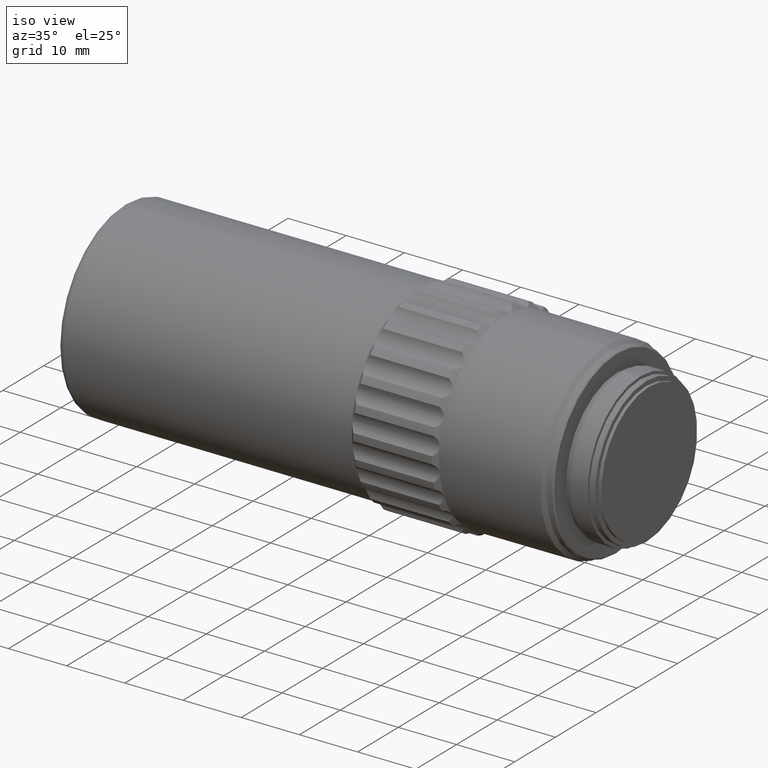
[diagram: clean part render]
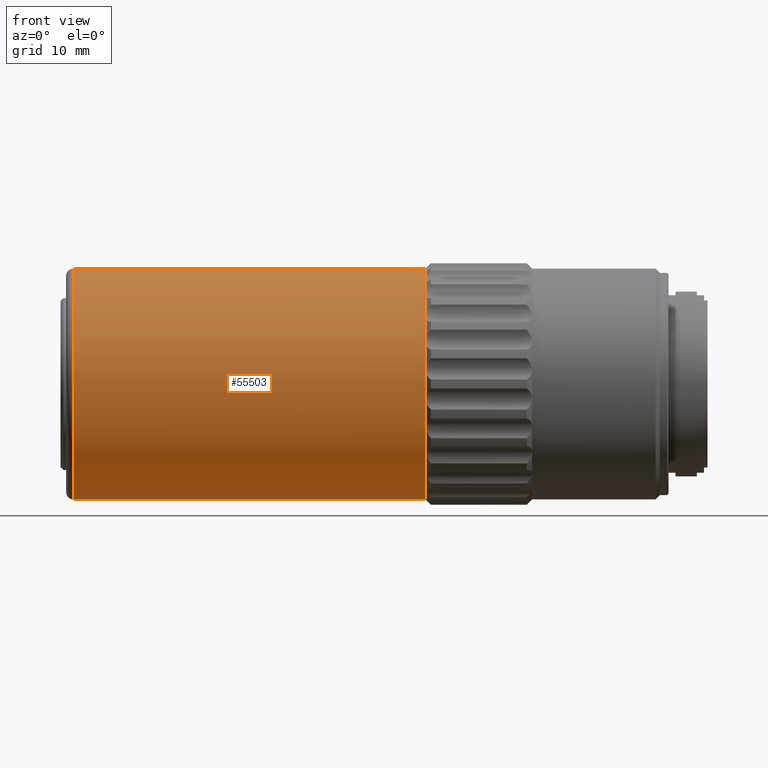
[diagram: tour spotlight — one face highlighted and labeled with its STEP entity id]
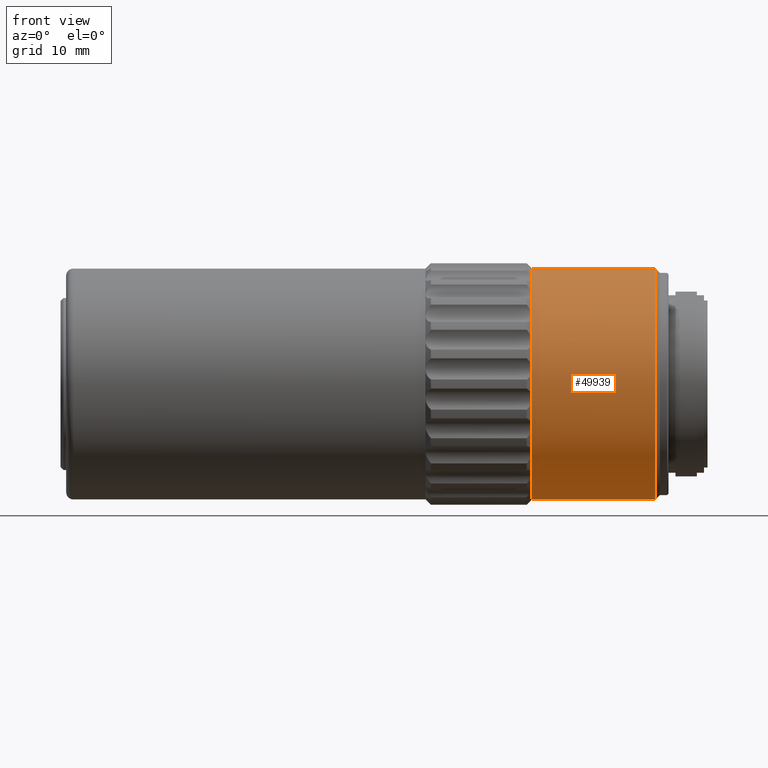
[diagram: tour spotlight — one face highlighted and labeled with its STEP entity id]
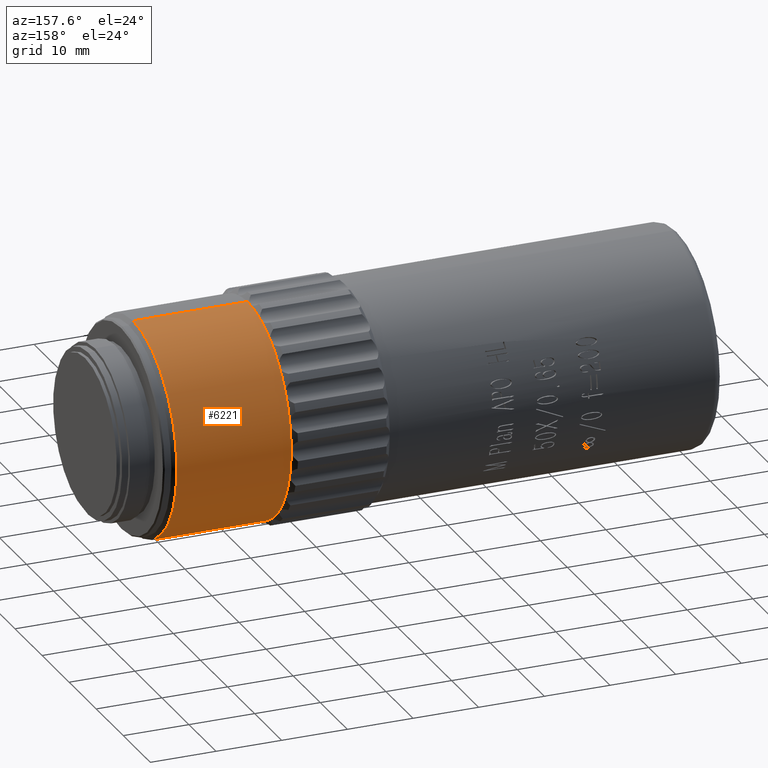
[diagram: tour spotlight — one face highlighted and labeled with its STEP entity id]
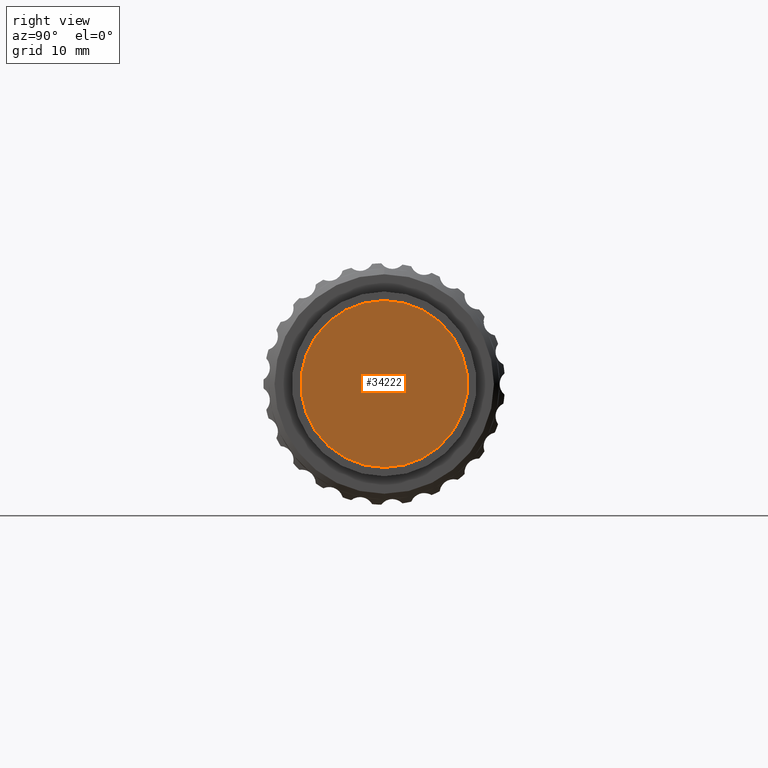
[diagram: tour spotlight — one face highlighted and labeled with its STEP entity id]
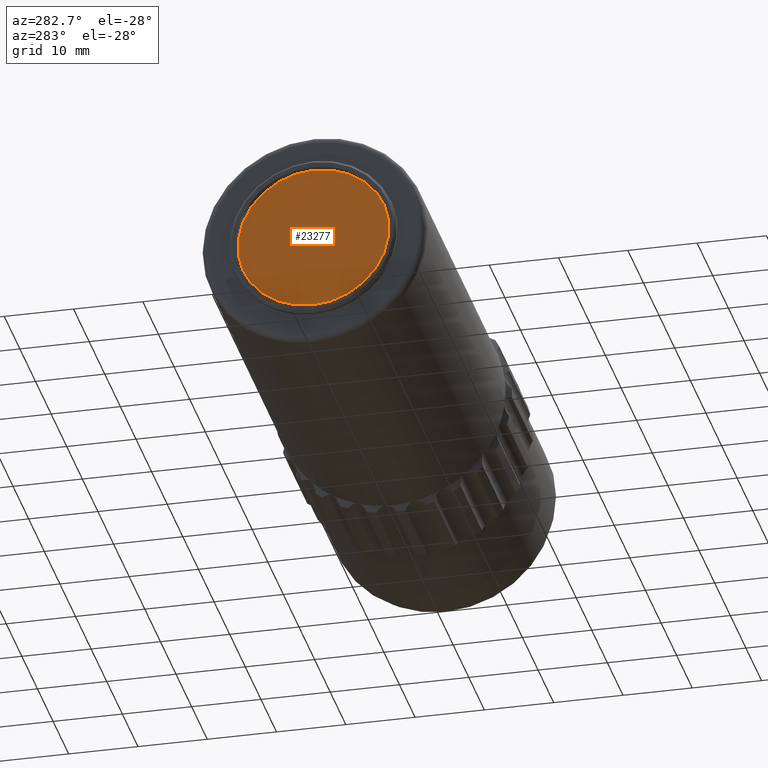
[diagram: tour spotlight — one face highlighted and labeled with its STEP entity id]
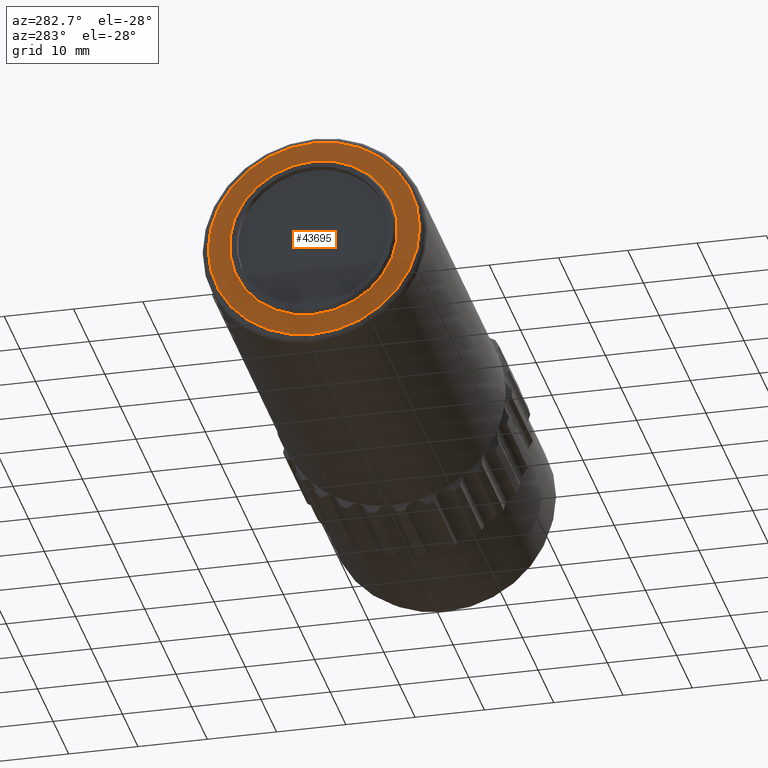
[diagram: tour spotlight — one face highlighted and labeled with its STEP entity id]
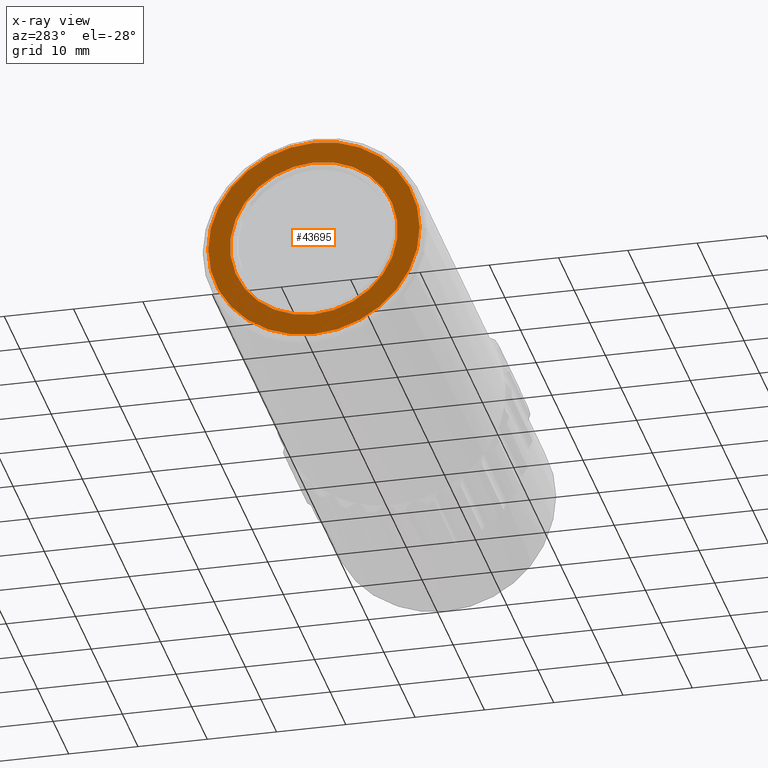
[diagram: x-ray of the same camera — body ghosted, this tour face saturated]
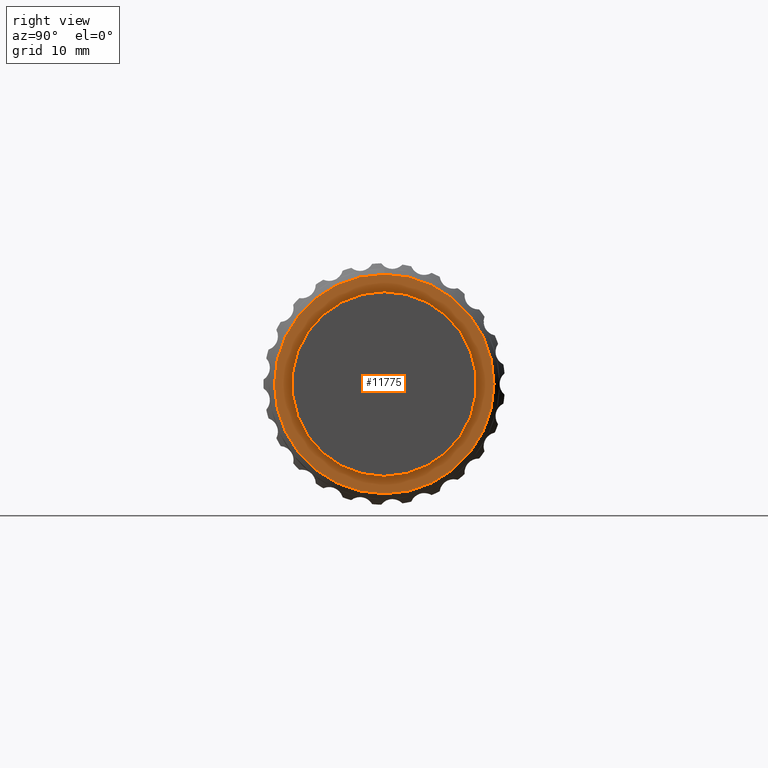
[diagram: tour spotlight — one face highlighted and labeled with its STEP entity id]
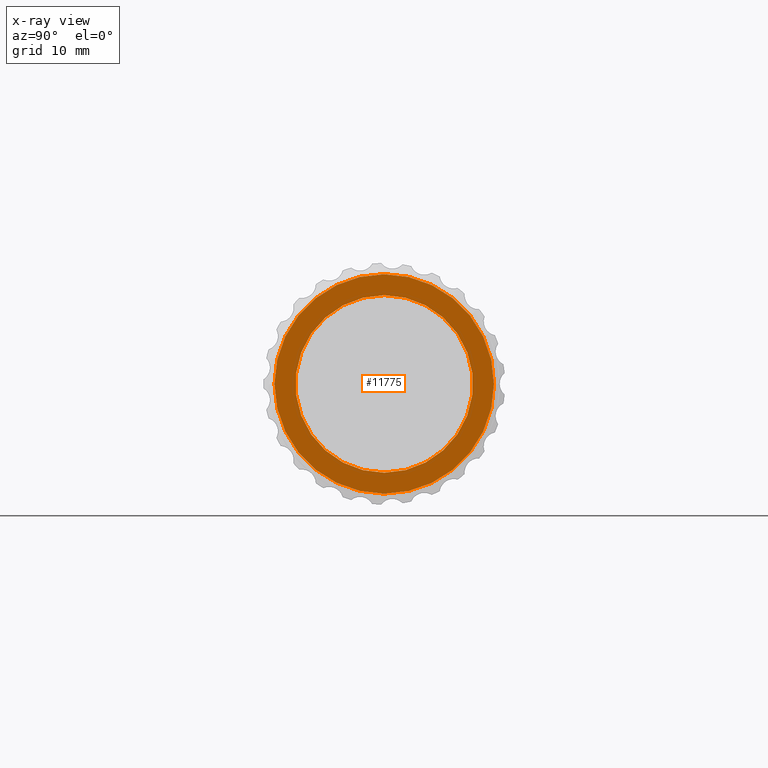
[diagram: x-ray of the same camera — body ghosted, this tour face saturated]
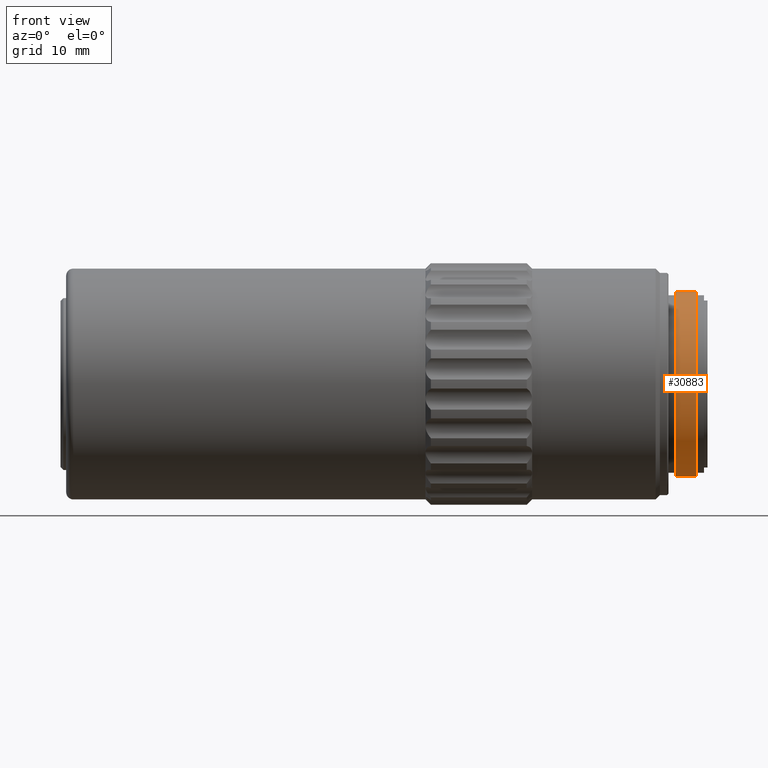
[diagram: tour spotlight — one face highlighted and labeled with its STEP entity id]
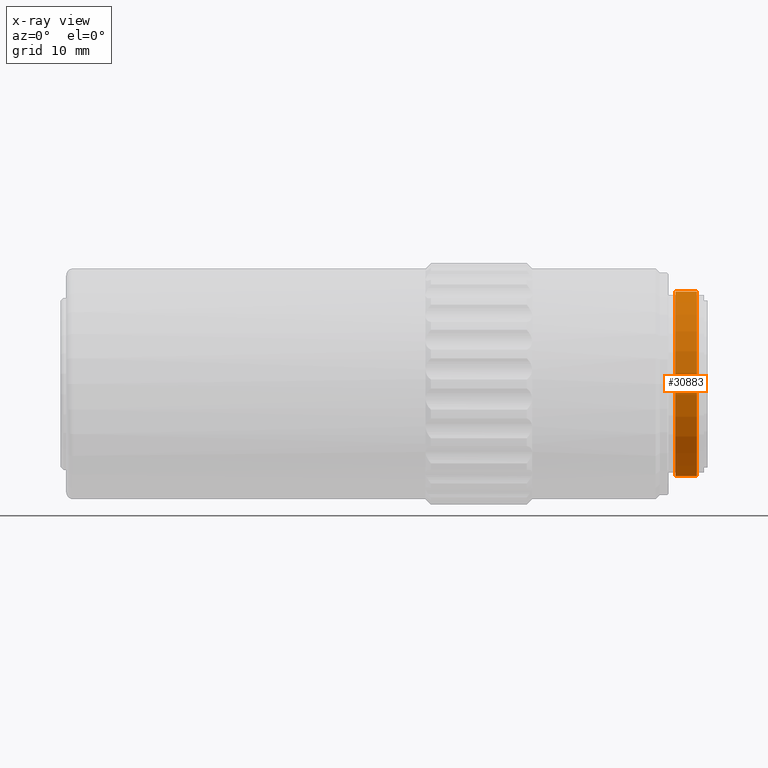
[diagram: x-ray of the same camera — body ghosted, this tour face saturated]
A machine part: a face-by-face anatomy tour. The part has 632 B-rep faces; the first image is the clean iso view, then the 8 largest visible faces are spotlighted one at a time (largest first), each with its STEP entity span.

Face 1 — front view, entity #55503. In plain terms, the highlighted cylindrical surface (partial cylindrical patch) has radius 16.25 mm, axis along (-1, -0, -0).
Definition (entity closure, byte-faithful):
#140 = CARTESIAN_POINT ( 'NONE',  ( 51.39999999999999147, -15.10886789568492361, -5.982023981123901102 ) ) ;
#877 = VERTEX_POINT ( 'NONE', #30316 ) ;
#1683 = CARTESIAN_POINT ( 'NONE',  ( 1.800000000000009148, 1.990051048614449313E-15, -16.25000000000000000 ) ) ;
#1749 = ORIENTED_EDGE ( 'NONE', *, *, #27677, .T. ) ;
#1801 = LINE ( 'NONE', #6336, #41352 ) ;
#2670 = CARTESIAN_POINT ( 'NONE',  ( 51.39999999999999147, 0.000000000000000000, 0.000000000000000000 ) ) ;
#2786 = ORIENTED_EDGE ( 'NONE', *, *, #9480, .F. ) ;
#3459 = CARTESIAN_POINT ( 'NONE',  ( 51.39999999999999147, -16.12186389635996875, 2.036665045422278997 ) ) ;
#3528 = EDGE_CURVE ( 'NONE', #29172, #36774, #26303, .T. ) ;
#3860 = CARTESIAN_POINT ( 'NONE',  ( 51.39999999999999147, -15.10886789568324851, 5.982023981128135937 ) ) ;
#4175 = EDGE_CURVE ( 'NONE', #20195, #34529, #28991, .T. ) ;
#4970 = AXIS2_PLACEMENT_3D ( 'NONE', #40011, #10523, #44812 ) ;
#5169 = VERTEX_POINT ( 'NONE', #42610 ) ;
#5382 = AXIS2_PLACEMENT_3D ( 'NONE', #11362, #53862, #7121 ) ;
#5638 = VERTEX_POINT ( 'NONE', #3459 ) ;
#5742 = AXIS2_PLACEMENT_3D ( 'NONE', #33017, #10933, #50577 ) ;
#5823 = EDGE_CURVE ( 'NONE', #18983, #28611, #52237, .T. ) ;
#6126 = ORIENTED_EDGE ( 'NONE', *, *, #5823, .T. ) ;
#6336 = CARTESIAN_POINT ( 'NONE',  ( 0.000000000000000000, 1.990051048614449313E-15, -16.25000000000000000 ) ) ;
#7027 = AXIS2_PLACEMENT_3D ( 'NONE', #32842, #7640, #37669 ) ;
#7121 = DIRECTION ( 'NONE',  ( 0.000000000000000000, 0.000000000000000000, 1.000000000000000000 ) ) ;
#7494 = VERTEX_POINT ( 'NONE', #140 ) ;
#7640 = DIRECTION ( 'NONE',  ( 1.000000000000000000, 0.000000000000000000, 0.000000000000000000 ) ) ;
#7677 = LINE ( 'NONE', #10805, #34316 ) ;
#9479 = AXIS2_PLACEMENT_3D ( 'NONE', #48858, #40913, #36672 ) ;
#9480 = EDGE_CURVE ( 'NONE', #20108, #28611, #1801, .T. ) ;
#9909 = ORIENTED_EDGE ( 'NONE', *, *, #24869, .T. ) ;
#10002 = AXIS2_PLACEMENT_3D ( 'NONE', #10458, #36527, #23752 ) ;
#10458 = CARTESIAN_POINT ( 'NONE',  ( 51.39999999999999147, 0.000000000000000000, 0.000000000000000000 ) ) ;
#10523 = DIRECTION ( 'NONE',  ( -1.000000000000000000, -0.000000000000000000, -0.000000000000000000 ) ) ;
#10599 = ORIENTED_EDGE ( 'NONE', *, *, #28111, .T. ) ;
#10805 = CARTESIAN_POINT ( 'NONE',  ( 0.000000000000000000, 0.000000000000000000, 16.25000000000000000 ) ) ;
#10933 = DIRECTION ( 'NONE',  ( -1.000000000000000000, -0.000000000000000000, -0.000000000000000000 ) ) ;
#11362 = CARTESIAN_POINT ( 'NONE',  ( 51.39999999999999147, 0.000000000000000000, 0.000000000000000000 ) ) ;
#12039 = AXIS2_PLACEMENT_3D ( 'NONE', #34913, #55870, #26114 ) ;
#12494 = DIRECTION ( 'NONE',  ( 0.000000000000000000, 0.000000000000000000, 1.000000000000000000 ) ) ;
#12775 = CARTESIAN_POINT ( 'NONE',  ( 51.39999999999999147, 0.000000000000000000, 0.000000000000000000 ) ) ;
#14548 = AXIS2_PLACEMENT_3D ( 'NONE', #36124, #44349, #49694 ) ;
#14878 = CARTESIAN_POINT ( 'NONE',  ( 51.39999999999999147, -13.14652615859414730, -9.551510349750961026 ) ) ;
#15170 = EDGE_CURVE ( 'NONE', #7494, #5169, #44379, .T. ) ;
#15762 = CIRCLE ( 'NONE', #37441, 16.25000000000000000 ) ;
#16662 = AXIS2_PLACEMENT_3D ( 'NONE', #12775, #47614, #12494 ) ;
#16671 = DIRECTION ( 'NONE',  ( 0.000000000000000000, 0.000000000000000000, 1.000000000000000000 ) ) ;
#18955 = DIRECTION ( 'NONE',  ( 0.000000000000000000, 0.000000000000000000, 1.000000000000000000 ) ) ;
#18983 = VERTEX_POINT ( 'NONE', #19222 ) ;
#19222 = CARTESIAN_POINT ( 'NONE',  ( 1.800000000000009148, 0.000000000000000000, 16.25000000000000000 ) ) ;
#19230 = DIRECTION ( 'NONE',  ( 0.000000000000000000, 0.000000000000000000, 1.000000000000000000 ) ) ;
#19352 = VERTEX_POINT ( 'NONE', #22240 ) ;
#19423 = CARTESIAN_POINT ( 'NONE',  ( 51.39999999999999147, -3.044946362019403274, -15.96216782434092885 ) ) ;
#19519 = CARTESIAN_POINT ( 'NONE',  ( 0.000000000000000000, 0.000000000000000000, 0.000000000000000000 ) ) ;
#20108 = VERTEX_POINT ( 'NONE', #38043 ) ;
#20195 = VERTEX_POINT ( 'NONE', #42845 ) ;
#20211 = CIRCLE ( 'NONE', #5742, 16.25000000000000000 ) ;
#20350 = EDGE_CURVE ( 'NONE', #32889, #20195, #49114, .T. ) ;
#21902 = EDGE_CURVE ( 'NONE', #877, #19352, #20211, .T. ) ;
#22240 = CARTESIAN_POINT ( 'NONE',  ( 51.39999999999999147, -6.918913487930907102, 14.70343960257353721 ) ) ;
#23053 = CIRCLE ( 'NONE', #36605, 16.25000000000000000 ) ;
#23752 = DIRECTION ( 'NONE',  ( 0.000000000000000000, 0.000000000000000000, 1.000000000000000000 ) ) ;
#24717 = CARTESIAN_POINT ( 'NONE',  ( 51.39999999999999147, 0.000000000000000000, 0.000000000000000000 ) ) ;
#24869 = EDGE_CURVE ( 'NONE', #5638, #29172, #29768, .T. ) ;
#24871 = EDGE_CURVE ( 'NONE', #45201, #18983, #7677, .T. ) ;
#26114 = DIRECTION ( 'NONE',  ( 0.000000000000000000, 0.000000000000000000, 1.000000000000000000 ) ) ;
#26139 = CIRCLE ( 'NONE', #46938, 16.25000000000000000 ) ;
#26303 = CIRCLE ( 'NONE', #14548, 16.25000000000000000 ) ;
#27272 = DIRECTION ( 'NONE',  ( -1.000000000000000000, -0.000000000000000000, -0.000000000000000000 ) ) ;
#27342 = ORIENTED_EDGE ( 'NONE', *, *, #40553, .T. ) ;
#27516 = CIRCLE ( 'NONE', #9479, 16.25000000000000000 ) ;
#27677 = EDGE_CURVE ( 'NONE', #20108, #32889, #26139, .T. ) ;
#27712 = DIRECTION ( 'NONE',  ( -1.000000000000000000, -0.000000000000000000, -0.000000000000000000 ) ) ;
#27855 = DIRECTION ( 'NONE',  ( 0.000000000000000000, 0.000000000000000000, 1.000000000000000000 ) ) ;
#28111 = EDGE_CURVE ( 'NONE', #36774, #877, #49630, .T. ) ;
#28611 = VERTEX_POINT ( 'NONE', #1683 ) ;
#28991 = CIRCLE ( 'NONE', #33543, 16.25000000000000000 ) ;
#29172 = VERTEX_POINT ( 'NONE', #3860 ) ;
#29333 = CIRCLE ( 'NONE', #4970, 16.25000000000000000 ) ;
#29768 = CIRCLE ( 'NONE', #5382, 16.25000000000000000 ) ;
#30316 = CARTESIAN_POINT ( 'NONE',  ( 51.39999999999999147, -10.35813983341471634, 12.52084019510780877 ) ) ;
#30433 = ORIENTED_EDGE ( 'NONE', *, *, #51362, .T. ) ;
#30778 = VERTEX_POINT ( 'NONE', #14878 ) ;
#32071 = CARTESIAN_POINT ( 'NONE',  ( 51.39999999999999147, 0.000000000000000000, 0.000000000000000000 ) ) ;
#32527 = DIRECTION ( 'NONE',  ( -1.000000000000000000, -0.000000000000000000, -0.000000000000000000 ) ) ;
#32842 = CARTESIAN_POINT ( 'NONE',  ( 1.800000000000009148, 0.000000000000000000, 0.000000000000000000 ) ) ;
#32889 = VERTEX_POINT ( 'NONE', #19423 ) ;
#32942 = AXIS2_PLACEMENT_3D ( 'NONE', #19519, #27712, #18955 ) ;
#33017 = CARTESIAN_POINT ( 'NONE',  ( 51.39999999999999147, 0.000000000000000000, 0.000000000000000000 ) ) ;
#33373 = CARTESIAN_POINT ( 'NONE',  ( 51.39999999999999147, 0.000000000000000000, 0.000000000000000000 ) ) ;
#33543 = AXIS2_PLACEMENT_3D ( 'NONE', #32071, #45113, #39758 ) ;
#34316 = VECTOR ( 'NONE', #41947, 1000.000000000000000 ) ;
#34529 = VERTEX_POINT ( 'NONE', #50148 ) ;
#34913 = CARTESIAN_POINT ( 'NONE',  ( 51.39999999999999147, 0.000000000000000000, 0.000000000000000000 ) ) ;
#35279 = ORIENTED_EDGE ( 'NONE', *, *, #15170, .T. ) ;
#35907 = CARTESIAN_POINT ( 'NONE',  ( 51.39999999999999147, -13.14652615859163731, 9.551510349754421370 ) ) ;
#36124 = CARTESIAN_POINT ( 'NONE',  ( 51.39999999999999147, 0.000000000000000000, 0.000000000000000000 ) ) ;
#36148 = CARTESIAN_POINT ( 'NONE',  ( 51.39999999999999147, 0.000000000000000000, 16.25000000000000000 ) ) ;
#36243 = FACE_OUTER_BOUND ( 'NONE', #47616, .T. ) ;
#36527 = DIRECTION ( 'NONE',  ( -1.000000000000000000, -0.000000000000000000, -0.000000000000000000 ) ) ;
#36605 = AXIS2_PLACEMENT_3D ( 'NONE', #2670, #44607, #27855 ) ;
#36672 = DIRECTION ( 'NONE',  ( 0.000000000000000000, 0.000000000000000000, 1.000000000000000000 ) ) ;
#36774 = VERTEX_POINT ( 'NONE', #35907 ) ;
#36932 = DIRECTION ( 'NONE',  ( -1.000000000000000000, -0.000000000000000000, -0.000000000000000000 ) ) ;
#37441 = AXIS2_PLACEMENT_3D ( 'NONE', #37642, #42724, #16671 ) ;
#37642 = CARTESIAN_POINT ( 'NONE',  ( 51.39999999999999147, 0.000000000000000000, 0.000000000000000000 ) ) ;
#37669 = DIRECTION ( 'NONE',  ( 0.000000000000000000, 0.000000000000000000, -1.000000000000000000 ) ) ;
#38043 = CARTESIAN_POINT ( 'NONE',  ( 51.39999999999999147, 0.000000000000000000, -16.25000000000000000 ) ) ;
#39758 = DIRECTION ( 'NONE',  ( 0.000000000000000000, 0.000000000000000000, 1.000000000000000000 ) ) ;
#40011 = CARTESIAN_POINT ( 'NONE',  ( 51.39999999999999147, 0.000000000000000000, 0.000000000000000000 ) ) ;
#40553 = EDGE_CURVE ( 'NONE', #5169, #5638, #41079, .T. ) ;
#40913 = DIRECTION ( 'NONE',  ( -1.000000000000000000, -0.000000000000000000, -0.000000000000000000 ) ) ;
#41079 = CIRCLE ( 'NONE', #16662, 16.25000000000000000 ) ;
#41352 = VECTOR ( 'NONE', #27272, 1000.000000000000000 ) ;
#41947 = DIRECTION ( 'NONE',  ( -1.000000000000000000, -0.000000000000000000, -0.000000000000000000 ) ) ;
#42610 = CARTESIAN_POINT ( 'NONE',  ( 51.39999999999999147, -16.12186389636055850, -2.036665045417608066 ) ) ;
#42724 = DIRECTION ( 'NONE',  ( -1.000000000000000000, -0.000000000000000000, -0.000000000000000000 ) ) ;
#42845 = CARTESIAN_POINT ( 'NONE',  ( 51.39999999999999147, -6.918913487933947337, -14.70343960257210192 ) ) ;
#43258 = ORIENTED_EDGE ( 'NONE', *, *, #24871, .T. ) ;
#44331 = ORIENTED_EDGE ( 'NONE', *, *, #20350, .T. ) ;
#44349 = DIRECTION ( 'NONE',  ( -1.000000000000000000, -0.000000000000000000, -0.000000000000000000 ) ) ;
#44379 = CIRCLE ( 'NONE', #10002, 16.25000000000000000 ) ;
#44607 = DIRECTION ( 'NONE',  ( -1.000000000000000000, -0.000000000000000000, -0.000000000000000000 ) ) ;
#44812 = DIRECTION ( 'NONE',  ( 0.000000000000000000, 0.000000000000000000, 1.000000000000000000 ) ) ;
#44961 = ORIENTED_EDGE ( 'NONE', *, *, #3528, .T. ) ;
#45113 = DIRECTION ( 'NONE',  ( -1.000000000000000000, -0.000000000000000000, -0.000000000000000000 ) ) ;
#45156 = AXIS2_PLACEMENT_3D ( 'NONE', #33373, #32527, #19230 ) ;
#45201 = VERTEX_POINT ( 'NONE', #36148 ) ;
#46938 = AXIS2_PLACEMENT_3D ( 'NONE', #24717, #36932, #55315 ) ;
#47614 = DIRECTION ( 'NONE',  ( -1.000000000000000000, -0.000000000000000000, -0.000000000000000000 ) ) ;
#47616 = EDGE_LOOP ( 'NONE', ( #2786, #1749, #44331, #49572, #49163, #30433, #35279, #27342, #9909, #44961, #10599, #52882, #55641, #48192, #43258, #6126 ) ) ;
#48192 = ORIENTED_EDGE ( 'NONE', *, *, #52826, .T. ) ;
#48858 = CARTESIAN_POINT ( 'NONE',  ( 51.39999999999999147, 0.000000000000000000, 0.000000000000000000 ) ) ;
#49114 = CIRCLE ( 'NONE', #12039, 16.25000000000000000 ) ;
#49163 = ORIENTED_EDGE ( 'NONE', *, *, #52386, .T. ) ;
#49572 = ORIENTED_EDGE ( 'NONE', *, *, #4175, .T. ) ;
#49630 = CIRCLE ( 'NONE', #45156, 16.25000000000000000 ) ;
#49694 = DIRECTION ( 'NONE',  ( 0.000000000000000000, 0.000000000000000000, 1.000000000000000000 ) ) ;
#50148 = CARTESIAN_POINT ( 'NONE',  ( 51.39999999999999147, -10.35813983341769706, -12.52084019510534141 ) ) ;
#50577 = DIRECTION ( 'NONE',  ( 0.000000000000000000, 0.000000000000000000, 1.000000000000000000 ) ) ;
#50651 = CARTESIAN_POINT ( 'NONE',  ( 51.39999999999999147, -3.044946362016649033, 15.96216782434145287 ) ) ;
#50844 = VERTEX_POINT ( 'NONE', #50651 ) ;
#51362 = EDGE_CURVE ( 'NONE', #30778, #7494, #27516, .T. ) ;
#52237 = CIRCLE ( 'NONE', #7027, 16.25000000000000000 ) ;
#52386 = EDGE_CURVE ( 'NONE', #34529, #30778, #29333, .T. ) ;
#52826 = EDGE_CURVE ( 'NONE', #50844, #45201, #23053, .T. ) ;
#52882 = ORIENTED_EDGE ( 'NONE', *, *, #21902, .T. ) ;
#53793 = CYLINDRICAL_SURFACE ( 'NONE', #32942, 16.25000000000000000 ) ;
#53862 = DIRECTION ( 'NONE',  ( -1.000000000000000000, -0.000000000000000000, -0.000000000000000000 ) ) ;
#55315 = DIRECTION ( 'NONE',  ( 0.000000000000000000, 0.000000000000000000, 1.000000000000000000 ) ) ;
#55503 = ADVANCED_FACE ( 'NONE', ( #36243 ), #53793, .T. ) ;
#55641 = ORIENTED_EDGE ( 'NONE', *, *, #55711, .T. ) ;
#55711 = EDGE_CURVE ( 'NONE', #19352, #50844, #15762, .T. ) ;
#55870 = DIRECTION ( 'NONE',  ( -1.000000000000000000, -0.000000000000000000, -0.000000000000000000 ) ) ;

Face 2 — front view, entity #49939. In plain terms, the highlighted cylindrical surface (partial cylindrical patch) has radius 16.25 mm, axis along (-1, -0, -0).
Definition (entity closure, byte-faithful):
#800 = DIRECTION ( 'NONE',  ( 0.000000000000000000, 0.000000000000000000, 1.000000000000000000 ) ) ;
#962 = DIRECTION ( 'NONE',  ( -1.000000000000000000, -0.000000000000000000, -0.000000000000000000 ) ) ;
#1075 = VERTEX_POINT ( 'NONE', #40087 ) ;
#1458 = AXIS2_PLACEMENT_3D ( 'NONE', #50266, #37528, #42330 ) ;
#3130 = EDGE_CURVE ( 'NONE', #1075, #25961, #7209, .T. ) ;
#3677 = ORIENTED_EDGE ( 'NONE', *, *, #55088, .F. ) ;
#4007 = CIRCLE ( 'NONE', #39278, 16.25000000000000000 ) ;
#4603 = AXIS2_PLACEMENT_3D ( 'NONE', #31518, #36340, #15090 ) ;
#4696 = DIRECTION ( 'NONE',  ( 0.000000000000000000, 0.000000000000000000, 1.000000000000000000 ) ) ;
#5673 = CARTESIAN_POINT ( 'NONE',  ( 83.79999999999999716, 0.000000000000000000, 16.25000000000000000 ) ) ;
#5880 = VERTEX_POINT ( 'NONE', #29990 ) ;
#6496 = DIRECTION ( 'NONE',  ( -1.000000000000000000, -0.000000000000000000, -0.000000000000000000 ) ) ;
#7209 = CIRCLE ( 'NONE', #14436, 16.25000000000000000 ) ;
#7512 = AXIS2_PLACEMENT_3D ( 'NONE', #40880, #962, #13995 ) ;
#7516 = CARTESIAN_POINT ( 'NONE',  ( 66.39999999999899671, -10.35813983341536648, 12.52084019510860102 ) ) ;
#7593 = VERTEX_POINT ( 'NONE', #35525 ) ;
#7643 = CIRCLE ( 'NONE', #19407, 16.25000000000000000 ) ;
#8095 = AXIS2_PLACEMENT_3D ( 'NONE', #55965, #20861, #25931 ) ;
#8506 = CIRCLE ( 'NONE', #49172, 16.25000000000000000 ) ;
#8659 = CARTESIAN_POINT ( 'NONE',  ( 66.40000000000000568, 0.000000000000000000, 0.000000000000000000 ) ) ;
#9437 = AXIS2_PLACEMENT_3D ( 'NONE', #38384, #20824, #51689 ) ;
#9949 = DIRECTION ( 'NONE',  ( 0.000000000000000000, 0.000000000000000000, 1.000000000000000000 ) ) ;
#10340 = AXIS2_PLACEMENT_3D ( 'NONE', #53562, #35458, #9949 ) ;
#10413 = ORIENTED_EDGE ( 'NONE', *, *, #16714, .F. ) ;
#10568 = VERTEX_POINT ( 'NONE', #53531 ) ;
#11253 = CARTESIAN_POINT ( 'NONE',  ( 83.79999999999999716, 1.990051048614449313E-15, -16.25000000000000000 ) ) ;
#11401 = EDGE_CURVE ( 'NONE', #44374, #27271, #30412, .T. ) ;
#11437 = DIRECTION ( 'NONE',  ( -1.000000000000000000, -0.000000000000000000, -0.000000000000000000 ) ) ;
#11489 = VERTEX_POINT ( 'NONE', #17402 ) ;
#11612 = ORIENTED_EDGE ( 'NONE', *, *, #48577, .F. ) ;
#11688 = CARTESIAN_POINT ( 'NONE',  ( 66.40000000000000568, 0.000000000000000000, 0.000000000000000000 ) ) ;
#11808 = ORIENTED_EDGE ( 'NONE', *, *, #25319, .F. ) ;
#11826 = AXIS2_PLACEMENT_3D ( 'NONE', #49842, #55419, #33617 ) ;
#12972 = FACE_OUTER_BOUND ( 'NONE', #29008, .T. ) ;
#13537 = DIRECTION ( 'NONE',  ( -1.000000000000000000, -0.000000000000000000, -0.000000000000000000 ) ) ;
#13995 = DIRECTION ( 'NONE',  ( 0.000000000000000000, 0.000000000000000000, 1.000000000000000000 ) ) ;
#14419 = CIRCLE ( 'NONE', #48791, 16.25000000000000000 ) ;
#14436 = AXIS2_PLACEMENT_3D ( 'NONE', #48380, #30810, #800 ) ;
#15090 = DIRECTION ( 'NONE',  ( 0.000000000000000000, 0.000000000000000000, 1.000000000000000000 ) ) ;
#15240 = VERTEX_POINT ( 'NONE', #35623 ) ;
#15605 = LINE ( 'NONE', #24645, #48372 ) ;
#15632 = CIRCLE ( 'NONE', #7512, 16.25000000000000000 ) ;
#16040 = CARTESIAN_POINT ( 'NONE',  ( 66.40000000000000568, 0.000000000000000000, 16.25000000000000000 ) ) ;
#16249 = ORIENTED_EDGE ( 'NONE', *, *, #3130, .F. ) ;
#16384 = EDGE_CURVE ( 'NONE', #7593, #38378, #42552, .T. ) ;
#16411 = CARTESIAN_POINT ( 'NONE',  ( 66.40000000000000568, 0.000000000000000000, 0.000000000000000000 ) ) ;
#16714 = EDGE_CURVE ( 'NONE', #23727, #52279, #21774, .T. ) ;
#16765 = ORIENTED_EDGE ( 'NONE', *, *, #26016, .F. ) ;
#16851 = ORIENTED_EDGE ( 'NONE', *, *, #16384, .F. ) ;
#17383 = EDGE_CURVE ( 'NONE', #15240, #10568, #15632, .T. ) ;
#17402 = CARTESIAN_POINT ( 'NONE',  ( 66.39999999999952252, -15.10886789568369970, 5.982023981128317125 ) ) ;
#17613 = EDGE_CURVE ( 'NONE', #40126, #11489, #29200, .T. ) ;
#17907 = EDGE_CURVE ( 'NONE', #27271, #20749, #55785, .T. ) ;
#19407 = AXIS2_PLACEMENT_3D ( 'NONE', #50237, #11437, #45988 ) ;
#19994 = CARTESIAN_POINT ( 'NONE',  ( 66.39999999999871250, -3.044946362016892838, 15.96216782434273895 ) ) ;
#20749 = VERTEX_POINT ( 'NONE', #16040 ) ;
#20824 = DIRECTION ( 'NONE',  ( -1.000000000000000000, -0.000000000000000000, -0.000000000000000000 ) ) ;
#20861 = DIRECTION ( 'NONE',  ( -1.000000000000000000, -0.000000000000000000, -0.000000000000000000 ) ) ;
#21774 = CIRCLE ( 'NONE', #11826, 16.25000000000000000 ) ;
#22023 = CYLINDRICAL_SURFACE ( 'NONE', #50136, 16.25000000000000000 ) ;
#23417 = CIRCLE ( 'NONE', #51460, 16.25000000000000000 ) ;
#23681 = DIRECTION ( 'NONE',  ( -1.000000000000000000, -0.000000000000000000, -0.000000000000000000 ) ) ;
#23727 = VERTEX_POINT ( 'NONE', #25409 ) ;
#23750 = DIRECTION ( 'NONE',  ( 0.000000000000000000, 0.000000000000000000, 1.000000000000000000 ) ) ;
#24645 = CARTESIAN_POINT ( 'NONE',  ( 0.000000000000000000, 1.990051048614449313E-15, -16.25000000000000000 ) ) ;
#25319 = EDGE_CURVE ( 'NONE', #25961, #34253, #14419, .T. ) ;
#25409 = CARTESIAN_POINT ( 'NONE',  ( 66.40000000000051728, -15.10886789568446886, -5.982023981123719025 ) ) ;
#25562 = VECTOR ( 'NONE', #47300, 1000.000000000000000 ) ;
#25931 = DIRECTION ( 'NONE',  ( 0.000000000000000000, 0.000000000000000000, 1.000000000000000000 ) ) ;
#25961 = VERTEX_POINT ( 'NONE', #37067 ) ;
#26016 = EDGE_CURVE ( 'NONE', #50408, #20749, #23417, .T. ) ;
#27028 = CIRCLE ( 'NONE', #8095, 16.25000000000000000 ) ;
#27271 = VERTEX_POINT ( 'NONE', #5673 ) ;
#27914 = CARTESIAN_POINT ( 'NONE',  ( 66.40000000000000568, 0.000000000000000000, 0.000000000000000000 ) ) ;
#29008 = EDGE_LOOP ( 'NONE', ( #37673, #36983, #55723, #16765, #46512, #43884, #16851, #3677, #42704, #51573, #10413, #50189, #11808, #16249, #11612, #44428 ) ) ;
#29200 = CIRCLE ( 'NONE', #44596, 16.25000000000000000 ) ;
#29977 = EDGE_CURVE ( 'NONE', #38378, #5880, #27028, .T. ) ;
#29990 = CARTESIAN_POINT ( 'NONE',  ( 66.39999999999882618, -6.918913487931414252, 14.70343960257462435 ) ) ;
#30005 = CARTESIAN_POINT ( 'NONE',  ( 0.000000000000000000, 0.000000000000000000, 16.25000000000000000 ) ) ;
#30412 = CIRCLE ( 'NONE', #1458, 16.25000000000000000 ) ;
#30810 = DIRECTION ( 'NONE',  ( -1.000000000000000000, -0.000000000000000000, -0.000000000000000000 ) ) ;
#31283 = DIRECTION ( 'NONE',  ( -1.000000000000000000, -0.000000000000000000, -0.000000000000000000 ) ) ;
#31518 = CARTESIAN_POINT ( 'NONE',  ( 66.40000000000000568, 0.000000000000000000, 0.000000000000000000 ) ) ;
#32929 = DIRECTION ( 'NONE',  ( -1.000000000000000000, -0.000000000000000000, -0.000000000000000000 ) ) ;
#33617 = DIRECTION ( 'NONE',  ( 0.000000000000000000, 0.000000000000000000, 1.000000000000000000 ) ) ;
#34253 = VERTEX_POINT ( 'NONE', #42291 ) ;
#34777 = CARTESIAN_POINT ( 'NONE',  ( 0.000000000000000000, 0.000000000000000000, 0.000000000000000000 ) ) ;
#34785 = CIRCLE ( 'NONE', #10340, 16.25000000000000000 ) ;
#35336 = DIRECTION ( 'NONE',  ( 0.000000000000000000, 0.000000000000000000, 1.000000000000000000 ) ) ;
#35458 = DIRECTION ( 'NONE',  ( -1.000000000000000000, -0.000000000000000000, -0.000000000000000000 ) ) ;
#35525 = CARTESIAN_POINT ( 'NONE',  ( 66.39999999999923830, -13.14652615859226614, 9.551510349754883222 ) ) ;
#35623 = CARTESIAN_POINT ( 'NONE',  ( 66.40000000000000568, 1.990051048614449313E-15, -16.25000000000000000 ) ) ;
#36340 = DIRECTION ( 'NONE',  ( -1.000000000000000000, -0.000000000000000000, -0.000000000000000000 ) ) ;
#36983 = ORIENTED_EDGE ( 'NONE', *, *, #11401, .T. ) ;
#37067 = CARTESIAN_POINT ( 'NONE',  ( 66.40000000000104308, -10.35813983341704692, -12.52084019510455271 ) ) ;
#37528 = DIRECTION ( 'NONE',  ( -1.000000000000000000, -0.000000000000000000, -0.000000000000000000 ) ) ;
#37673 = ORIENTED_EDGE ( 'NONE', *, *, #52652, .F. ) ;
#38378 = VERTEX_POINT ( 'NONE', #7516 ) ;
#38384 = CARTESIAN_POINT ( 'NONE',  ( 66.40000000000000568, 0.000000000000000000, 0.000000000000000000 ) ) ;
#38694 = EDGE_CURVE ( 'NONE', #34253, #23727, #34785, .T. ) ;
#39278 = AXIS2_PLACEMENT_3D ( 'NONE', #27914, #23681, #44120 ) ;
#39857 = EDGE_CURVE ( 'NONE', #5880, #50408, #7643, .T. ) ;
#40087 = CARTESIAN_POINT ( 'NONE',  ( 66.40000000000122782, -6.918913487933439299, -14.70343960257101656 ) ) ;
#40126 = VERTEX_POINT ( 'NONE', #55184 ) ;
#40880 = CARTESIAN_POINT ( 'NONE',  ( 66.40000000000000568, 0.000000000000000000, 0.000000000000000000 ) ) ;
#41386 = DIRECTION ( 'NONE',  ( -1.000000000000000000, -0.000000000000000000, -0.000000000000000000 ) ) ;
#42180 = DIRECTION ( 'NONE',  ( 0.000000000000000000, 0.000000000000000000, 1.000000000000000000 ) ) ;
#42291 = CARTESIAN_POINT ( 'NONE',  ( 66.40000000000080149, -13.14652615859351847, -9.551510349750504503 ) ) ;
#42330 = DIRECTION ( 'NONE',  ( 0.000000000000000000, 0.000000000000000000, 1.000000000000000000 ) ) ;
#42552 = CIRCLE ( 'NONE', #4603, 16.25000000000000000 ) ;
#42704 = ORIENTED_EDGE ( 'NONE', *, *, #17613, .F. ) ;
#43884 = ORIENTED_EDGE ( 'NONE', *, *, #29977, .F. ) ;
#44120 = DIRECTION ( 'NONE',  ( 0.000000000000000000, 0.000000000000000000, 1.000000000000000000 ) ) ;
#44374 = VERTEX_POINT ( 'NONE', #11253 ) ;
#44428 = ORIENTED_EDGE ( 'NONE', *, *, #17383, .F. ) ;
#44596 = AXIS2_PLACEMENT_3D ( 'NONE', #11688, #32929, #50490 ) ;
#45294 = CARTESIAN_POINT ( 'NONE',  ( 66.40000000000000568, 0.000000000000000000, 0.000000000000000000 ) ) ;
#45988 = DIRECTION ( 'NONE',  ( 0.000000000000000000, 0.000000000000000000, 1.000000000000000000 ) ) ;
#46230 = EDGE_CURVE ( 'NONE', #52279, #40126, #8506, .T. ) ;
#46512 = ORIENTED_EDGE ( 'NONE', *, *, #39857, .F. ) ;
#47300 = DIRECTION ( 'NONE',  ( -1.000000000000000000, -0.000000000000000000, -0.000000000000000000 ) ) ;
#48332 = CIRCLE ( 'NONE', #9437, 16.25000000000000000 ) ;
#48372 = VECTOR ( 'NONE', #41386, 1000.000000000000000 ) ;
#48380 = CARTESIAN_POINT ( 'NONE',  ( 66.40000000000000568, 0.000000000000000000, 0.000000000000000000 ) ) ;
#48577 = EDGE_CURVE ( 'NONE', #10568, #1075, #48332, .T. ) ;
#48791 = AXIS2_PLACEMENT_3D ( 'NONE', #45294, #6496, #23750 ) ;
#49172 = AXIS2_PLACEMENT_3D ( 'NONE', #16411, #50678, #42180 ) ;
#49842 = CARTESIAN_POINT ( 'NONE',  ( 66.40000000000000568, 0.000000000000000000, 0.000000000000000000 ) ) ;
#49939 = ADVANCED_FACE ( 'NONE', ( #12972 ), #22023, .T. ) ;
#50136 = AXIS2_PLACEMENT_3D ( 'NONE', #34777, #13537, #35336 ) ;
#50189 = ORIENTED_EDGE ( 'NONE', *, *, #38694, .F. ) ;
#50237 = CARTESIAN_POINT ( 'NONE',  ( 66.40000000000000568, 0.000000000000000000, 0.000000000000000000 ) ) ;
#50266 = CARTESIAN_POINT ( 'NONE',  ( 83.79999999999999716, 0.000000000000000000, 0.000000000000000000 ) ) ;
#50408 = VERTEX_POINT ( 'NONE', #19994 ) ;
#50490 = DIRECTION ( 'NONE',  ( 0.000000000000000000, 0.000000000000000000, 1.000000000000000000 ) ) ;
#50678 = DIRECTION ( 'NONE',  ( -1.000000000000000000, -0.000000000000000000, -0.000000000000000000 ) ) ;
#51460 = AXIS2_PLACEMENT_3D ( 'NONE', #8659, #31283, #4696 ) ;
#51573 = ORIENTED_EDGE ( 'NONE', *, *, #46230, .F. ) ;
#51689 = DIRECTION ( 'NONE',  ( 0.000000000000000000, 0.000000000000000000, 1.000000000000000000 ) ) ;
#52279 = VERTEX_POINT ( 'NONE', #54895 ) ;
#52652 = EDGE_CURVE ( 'NONE', #44374, #15240, #15605, .T. ) ;
#53531 = CARTESIAN_POINT ( 'NONE',  ( 66.40000000000132729, -3.044946362019161246, -15.96216782433964454 ) ) ;
#53562 = CARTESIAN_POINT ( 'NONE',  ( 66.40000000000000568, 0.000000000000000000, 0.000000000000000000 ) ) ;
#54895 = CARTESIAN_POINT ( 'NONE',  ( 66.40000000000019043, -16.12186389636039507, -2.036665045417584086 ) ) ;
#55088 = EDGE_CURVE ( 'NONE', #11489, #7593, #4007, .T. ) ;
#55184 = CARTESIAN_POINT ( 'NONE',  ( 66.39999999999986358, -16.12186389636013573, 2.036665045422302978 ) ) ;
#55419 = DIRECTION ( 'NONE',  ( -1.000000000000000000, -0.000000000000000000, -0.000000000000000000 ) ) ;
#55723 = ORIENTED_EDGE ( 'NONE', *, *, #17907, .T. ) ;
#55785 = LINE ( 'NONE', #30005, #25562 ) ;
#55965 = CARTESIAN_POINT ( 'NONE',  ( 66.40000000000000568, 0.000000000000000000, 0.000000000000000000 ) ) ;

Face 3 — auxiliary view, entity #6221. In plain terms, the highlighted cylindrical surface (partial cylindrical patch) has radius 16.25 mm, axis along (-1, -0, -0).
Definition (entity closure, byte-faithful):
#86 = VERTEX_POINT ( 'NONE', #45270 ) ;
#1652 = ORIENTED_EDGE ( 'NONE', *, *, #40796, .F. ) ;
#1921 = DIRECTION ( 'NONE',  ( -1.000000000000000000, -0.000000000000000000, -0.000000000000000000 ) ) ;
#2085 = DIRECTION ( 'NONE',  ( 0.000000000000000000, 0.000000000000000000, 1.000000000000000000 ) ) ;
#2155 = CIRCLE ( 'NONE', #15697, 16.25000000000000000 ) ;
#2389 = DIRECTION ( 'NONE',  ( 0.000000000000000000, 0.000000000000000000, 1.000000000000000000 ) ) ;
#2392 = DIRECTION ( 'NONE',  ( -1.000000000000000000, -0.000000000000000000, -0.000000000000000000 ) ) ;
#2810 = DIRECTION ( 'NONE',  ( -1.000000000000000000, -0.000000000000000000, -0.000000000000000000 ) ) ;
#3327 = DIRECTION ( 'NONE',  ( -1.000000000000000000, -0.000000000000000000, -0.000000000000000000 ) ) ;
#4569 = VERTEX_POINT ( 'NONE', #54236 ) ;
#4943 = CARTESIAN_POINT ( 'NONE',  ( 66.40000000000000568, 0.000000000000000000, 0.000000000000000000 ) ) ;
#4962 = CIRCLE ( 'NONE', #6718, 16.25000000000000000 ) ;
#5120 = CARTESIAN_POINT ( 'NONE',  ( 66.40000000000034674, 15.73947636833992725, -4.041210666428843190 ) ) ;
#5507 = ORIENTED_EDGE ( 'NONE', *, *, #23462, .F. ) ;
#5673 = CARTESIAN_POINT ( 'NONE',  ( 83.79999999999999716, 0.000000000000000000, 16.25000000000000000 ) ) ;
#5836 = AXIS2_PLACEMENT_3D ( 'NONE', #32686, #2392, #45167 ) ;
#5844 = AXIS2_PLACEMENT_3D ( 'NONE', #41590, #20622, #37905 ) ;
#6221 = ADVANCED_FACE ( 'NONE', ( #45397 ), #49920, .T. ) ;
#6718 = AXIS2_PLACEMENT_3D ( 'NONE', #28932, #46241, #54461 ) ;
#6957 = VERTEX_POINT ( 'NONE', #55437 ) ;
#8421 = DIRECTION ( 'NONE',  ( 0.000000000000000000, 0.000000000000000000, 1.000000000000000000 ) ) ;
#10857 = DIRECTION ( 'NONE',  ( 0.000000000000000000, 0.000000000000000000, 1.000000000000000000 ) ) ;
#11236 = CIRCLE ( 'NONE', #42904, 16.25000000000000000 ) ;
#11253 = CARTESIAN_POINT ( 'NONE',  ( 83.79999999999999716, 1.990051048614449313E-15, -16.25000000000000000 ) ) ;
#11638 = ORIENTED_EDGE ( 'NONE', *, *, #37810, .F. ) ;
#11700 = CARTESIAN_POINT ( 'NONE',  ( 66.40000000000000568, 0.000000000000000000, 0.000000000000000000 ) ) ;
#11717 = CIRCLE ( 'NONE', #41543, 16.25000000000000000 ) ;
#13495 = VERTEX_POINT ( 'NONE', #35218 ) ;
#13999 = CIRCLE ( 'NONE', #5836, 16.25000000000000000 ) ;
#14819 = CARTESIAN_POINT ( 'NONE',  ( 66.40000000000067359, 14.23998355071214839, -7.828497204152697009 ) ) ;
#14951 = DIRECTION ( 'NONE',  ( 0.000000000000000000, 0.000000000000000000, 1.000000000000000000 ) ) ;
#15225 = CARTESIAN_POINT ( 'NONE',  ( 66.40000000000000568, 0.000000000000000000, 0.000000000000000000 ) ) ;
#15240 = VERTEX_POINT ( 'NONE', #35623 ) ;
#15415 = CIRCLE ( 'NONE', #35326, 16.25000000000000000 ) ;
#15605 = LINE ( 'NONE', #24645, #48372 ) ;
#15697 = AXIS2_PLACEMENT_3D ( 'NONE', #34666, #42602, #42881 ) ;
#15945 = EDGE_CURVE ( 'NONE', #4569, #16786, #15415, .T. ) ;
#16040 = CARTESIAN_POINT ( 'NONE',  ( 66.40000000000000568, 0.000000000000000000, 16.25000000000000000 ) ) ;
#16786 = VERTEX_POINT ( 'NONE', #18581 ) ;
#17907 = EDGE_CURVE ( 'NONE', #27271, #20749, #55785, .T. ) ;
#18581 = CARTESIAN_POINT ( 'NONE',  ( 66.39999999999969305, 15.73947636834058272, 4.041210666428938225 ) ) ;
#18687 = DIRECTION ( 'NONE',  ( 0.000000000000000000, 0.000000000000000000, 1.000000000000000000 ) ) ;
#19270 = AXIS2_PLACEMENT_3D ( 'NONE', #46336, #47750, #51711 ) ;
#19425 = VERTEX_POINT ( 'NONE', #49396 ) ;
#20022 = CARTESIAN_POINT ( 'NONE',  ( 66.40000000000000568, 0.000000000000000000, 0.000000000000000000 ) ) ;
#20086 = DIRECTION ( 'NONE',  ( 0.000000000000000000, 0.000000000000000000, 1.000000000000000000 ) ) ;
#20622 = DIRECTION ( 'NONE',  ( -1.000000000000000000, -0.000000000000000000, -0.000000000000000000 ) ) ;
#20749 = VERTEX_POINT ( 'NONE', #16040 ) ;
#20786 = EDGE_CURVE ( 'NONE', #33436, #13495, #43717, .T. ) ;
#22490 = ORIENTED_EDGE ( 'NONE', *, *, #44390, .F. ) ;
#22952 = CARTESIAN_POINT ( 'NONE',  ( 66.40000000000127045, 5.021526158591723465, -15.45466838979529989 ) ) ;
#23271 = EDGE_CURVE ( 'NONE', #27271, #44374, #28866, .T. ) ;
#23304 = EDGE_CURVE ( 'NONE', #23997, #15240, #11717, .T. ) ;
#23462 = EDGE_CURVE ( 'NONE', #6957, #28522, #27064, .T. ) ;
#23599 = DIRECTION ( 'NONE',  ( -1.000000000000000000, -0.000000000000000000, -0.000000000000000000 ) ) ;
#23988 = VERTEX_POINT ( 'NONE', #43137 ) ;
#23997 = VERTEX_POINT ( 'NONE', #26119 ) ;
#24417 = CARTESIAN_POINT ( 'NONE',  ( 0.000000000000000000, 0.000000000000000000, 0.000000000000000000 ) ) ;
#24533 = DIRECTION ( 'NONE',  ( 0.000000000000000000, 0.000000000000000000, 1.000000000000000000 ) ) ;
#24593 = CARTESIAN_POINT ( 'NONE',  ( 66.40000000000000568, 0.000000000000000000, 0.000000000000000000 ) ) ;
#24645 = CARTESIAN_POINT ( 'NONE',  ( 0.000000000000000000, 1.990051048614449313E-15, -16.25000000000000000 ) ) ;
#24706 = CARTESIAN_POINT ( 'NONE',  ( 83.79999999999999716, 0.000000000000000000, 0.000000000000000000 ) ) ;
#24975 = DIRECTION ( 'NONE',  ( -1.000000000000000000, -0.000000000000000000, -0.000000000000000000 ) ) ;
#25184 = EDGE_CURVE ( 'NONE', #28522, #45318, #44265, .T. ) ;
#25369 = DIRECTION ( 'NONE',  ( -1.000000000000000000, -0.000000000000000000, -0.000000000000000000 ) ) ;
#25538 = DIRECTION ( 'NONE',  ( -1.000000000000000000, -0.000000000000000000, -0.000000000000000000 ) ) ;
#25562 = VECTOR ( 'NONE', #47300, 1000.000000000000000 ) ;
#25667 = ORIENTED_EDGE ( 'NONE', *, *, #42196, .F. ) ;
#25670 = CIRCLE ( 'NONE', #26552, 16.25000000000000000 ) ;
#26109 = DIRECTION ( 'NONE',  ( 0.000000000000000000, 0.000000000000000000, 1.000000000000000000 ) ) ;
#26119 = CARTESIAN_POINT ( 'NONE',  ( 66.40000000000134150, 1.020345942350156188, -16.21793433695815878 ) ) ;
#26552 = AXIS2_PLACEMENT_3D ( 'NONE', #15225, #1921, #14951 ) ;
#26595 = AXIS2_PLACEMENT_3D ( 'NONE', #51459, #3327, #8421 ) ;
#26641 = ORIENTED_EDGE ( 'NONE', *, *, #47206, .F. ) ;
#27064 = CIRCLE ( 'NONE', #36139, 16.25000000000000000 ) ;
#27165 = CARTESIAN_POINT ( 'NONE',  ( 66.40000000000000568, 0.000000000000000000, 0.000000000000000000 ) ) ;
#27260 = DIRECTION ( 'NONE',  ( -1.000000000000000000, -0.000000000000000000, -0.000000000000000000 ) ) ;
#27271 = VERTEX_POINT ( 'NONE', #5673 ) ;
#28224 = ORIENTED_EDGE ( 'NONE', *, *, #23304, .F. ) ;
#28522 = VERTEX_POINT ( 'NONE', #5120 ) ;
#28866 = CIRCLE ( 'NONE', #56022, 16.25000000000000000 ) ;
#28932 = CARTESIAN_POINT ( 'NONE',  ( 66.40000000000000568, 0.000000000000000000, 0.000000000000000000 ) ) ;
#30005 = CARTESIAN_POINT ( 'NONE',  ( 0.000000000000000000, 0.000000000000000000, 16.25000000000000000 ) ) ;
#31083 = EDGE_CURVE ( 'NONE', #45318, #19425, #35223, .T. ) ;
#31569 = DIRECTION ( 'NONE',  ( -1.000000000000000000, -0.000000000000000000, -0.000000000000000000 ) ) ;
#32021 = CIRCLE ( 'NONE', #26595, 16.25000000000000000 ) ;
#32319 = AXIS2_PLACEMENT_3D ( 'NONE', #24417, #24975, #33204 ) ;
#32686 = CARTESIAN_POINT ( 'NONE',  ( 66.40000000000000568, 0.000000000000000000, 0.000000000000000000 ) ) ;
#33204 = DIRECTION ( 'NONE',  ( 0.000000000000000000, 0.000000000000000000, 1.000000000000000000 ) ) ;
#33436 = VERTEX_POINT ( 'NONE', #38181 ) ;
#33798 = ORIENTED_EDGE ( 'NONE', *, *, #25184, .F. ) ;
#34252 = ORIENTED_EDGE ( 'NONE', *, *, #15945, .F. ) ;
#34666 = CARTESIAN_POINT ( 'NONE',  ( 66.40000000000000568, 0.000000000000000000, 0.000000000000000000 ) ) ;
#35218 = CARTESIAN_POINT ( 'NONE',  ( 66.39999999999889724, 8.707185418409761013, 13.72032878940839673 ) ) ;
#35223 = CIRCLE ( 'NONE', #48758, 16.25000000000000000 ) ;
#35326 = AXIS2_PLACEMENT_3D ( 'NONE', #20022, #25369, #24533 ) ;
#35623 = CARTESIAN_POINT ( 'NONE',  ( 66.40000000000000568, 1.990051048614449313E-15, -16.25000000000000000 ) ) ;
#36065 = DIRECTION ( 'NONE',  ( 0.000000000000000000, 0.000000000000000000, 1.000000000000000000 ) ) ;
#36081 = VERTEX_POINT ( 'NONE', #42656 ) ;
#36139 = AXIS2_PLACEMENT_3D ( 'NONE', #11700, #25538, #26109 ) ;
#36145 = EDGE_CURVE ( 'NONE', #86, #4569, #13999, .T. ) ;
#37326 = VERTEX_POINT ( 'NONE', #22952 ) ;
#37508 = ORIENTED_EDGE ( 'NONE', *, *, #31083, .F. ) ;
#37810 = EDGE_CURVE ( 'NONE', #16786, #6957, #4962, .T. ) ;
#37905 = DIRECTION ( 'NONE',  ( 0.000000000000000000, 0.000000000000000000, 1.000000000000000000 ) ) ;
#38181 = CARTESIAN_POINT ( 'NONE',  ( 66.39999999999876934, 5.021526158594065592, 15.45466838979719171 ) ) ;
#38736 = EDGE_LOOP ( 'NONE', ( #40964, #39913, #28224, #43232, #22490, #54157, #37508, #33798, #5507, #11638, #34252, #44157, #1652, #44931, #26641, #25667, #49876 ) ) ;
#39326 = AXIS2_PLACEMENT_3D ( 'NONE', #54214, #31569, #2389 ) ;
#39913 = ORIENTED_EDGE ( 'NONE', *, *, #52652, .T. ) ;
#40251 = CIRCLE ( 'NONE', #5844, 16.25000000000000000 ) ;
#40796 = EDGE_CURVE ( 'NONE', #13495, #86, #11236, .T. ) ;
#40890 = CARTESIAN_POINT ( 'NONE',  ( 66.40000000000000568, 0.000000000000000000, 0.000000000000000000 ) ) ;
#40964 = ORIENTED_EDGE ( 'NONE', *, *, #23271, .T. ) ;
#41386 = DIRECTION ( 'NONE',  ( -1.000000000000000000, -0.000000000000000000, -0.000000000000000000 ) ) ;
#41543 = AXIS2_PLACEMENT_3D ( 'NONE', #40890, #23599, #2085 ) ;
#41590 = CARTESIAN_POINT ( 'NONE',  ( 66.40000000000000568, 0.000000000000000000, 0.000000000000000000 ) ) ;
#42196 = EDGE_CURVE ( 'NONE', #20749, #36081, #2155, .T. ) ;
#42602 = DIRECTION ( 'NONE',  ( -1.000000000000000000, -0.000000000000000000, -0.000000000000000000 ) ) ;
#42656 = CARTESIAN_POINT ( 'NONE',  ( 66.39999999999869829, 1.020345942352532287, 16.21793433696066700 ) ) ;
#42881 = DIRECTION ( 'NONE',  ( 0.000000000000000000, 0.000000000000000000, 1.000000000000000000 ) ) ;
#42904 = AXIS2_PLACEMENT_3D ( 'NONE', #24593, #2810, #20086 ) ;
#43137 = CARTESIAN_POINT ( 'NONE',  ( 66.40000000000114255, 8.707185418407631161, -13.72032878940709466 ) ) ;
#43232 = ORIENTED_EDGE ( 'NONE', *, *, #52951, .F. ) ;
#43717 = CIRCLE ( 'NONE', #19270, 16.25000000000000000 ) ;
#44157 = ORIENTED_EDGE ( 'NONE', *, *, #36145, .F. ) ;
#44265 = CIRCLE ( 'NONE', #51497, 16.25000000000000000 ) ;
#44374 = VERTEX_POINT ( 'NONE', #11253 ) ;
#44390 = EDGE_CURVE ( 'NONE', #23988, #37326, #25670, .T. ) ;
#44466 = DIRECTION ( 'NONE',  ( -1.000000000000000000, -0.000000000000000000, -0.000000000000000000 ) ) ;
#44931 = ORIENTED_EDGE ( 'NONE', *, *, #20786, .F. ) ;
#45167 = DIRECTION ( 'NONE',  ( 0.000000000000000000, 0.000000000000000000, 1.000000000000000000 ) ) ;
#45270 = CARTESIAN_POINT ( 'NONE',  ( 66.39999999999911040, 11.84574019559882174, 11.12389047134158027 ) ) ;
#45318 = VERTEX_POINT ( 'NONE', #14819 ) ;
#45397 = FACE_OUTER_BOUND ( 'NONE', #38736, .T. ) ;
#46241 = DIRECTION ( 'NONE',  ( -1.000000000000000000, -0.000000000000000000, -0.000000000000000000 ) ) ;
#46336 = CARTESIAN_POINT ( 'NONE',  ( 66.40000000000000568, 0.000000000000000000, 0.000000000000000000 ) ) ;
#47206 = EDGE_CURVE ( 'NONE', #36081, #33436, #32021, .T. ) ;
#47300 = DIRECTION ( 'NONE',  ( -1.000000000000000000, -0.000000000000000000, -0.000000000000000000 ) ) ;
#47750 = DIRECTION ( 'NONE',  ( -1.000000000000000000, -0.000000000000000000, -0.000000000000000000 ) ) ;
#48372 = VECTOR ( 'NONE', #41386, 1000.000000000000000 ) ;
#48758 = AXIS2_PLACEMENT_3D ( 'NONE', #4943, #27260, #36065 ) ;
#49252 = CIRCLE ( 'NONE', #39326, 16.25000000000000000 ) ;
#49396 = CARTESIAN_POINT ( 'NONE',  ( 66.40000000000092939, 11.84574019559706137, -11.12389047134079867 ) ) ;
#49876 = ORIENTED_EDGE ( 'NONE', *, *, #17907, .F. ) ;
#49920 = CYLINDRICAL_SURFACE ( 'NONE', #32319, 16.25000000000000000 ) ;
#50500 = DIRECTION ( 'NONE',  ( -1.000000000000000000, -0.000000000000000000, -0.000000000000000000 ) ) ;
#51459 = CARTESIAN_POINT ( 'NONE',  ( 66.40000000000000568, 0.000000000000000000, 0.000000000000000000 ) ) ;
#51497 = AXIS2_PLACEMENT_3D ( 'NONE', #27165, #44466, #18687 ) ;
#51711 = DIRECTION ( 'NONE',  ( 0.000000000000000000, 0.000000000000000000, 1.000000000000000000 ) ) ;
#52212 = EDGE_CURVE ( 'NONE', #19425, #23988, #40251, .T. ) ;
#52652 = EDGE_CURVE ( 'NONE', #44374, #15240, #15605, .T. ) ;
#52951 = EDGE_CURVE ( 'NONE', #37326, #23997, #49252, .T. ) ;
#54157 = ORIENTED_EDGE ( 'NONE', *, *, #52212, .F. ) ;
#54214 = CARTESIAN_POINT ( 'NONE',  ( 66.40000000000000568, 0.000000000000000000, 0.000000000000000000 ) ) ;
#54236 = CARTESIAN_POINT ( 'NONE',  ( 66.39999999999938041, 14.23998355071341493, 7.828497204153052280 ) ) ;
#54461 = DIRECTION ( 'NONE',  ( 0.000000000000000000, 0.000000000000000000, 1.000000000000000000 ) ) ;
#55437 = CARTESIAN_POINT ( 'NONE',  ( 66.40000000000003411, 16.25000000000000000, -2.481626326403837074E-15 ) ) ;
#55785 = LINE ( 'NONE', #30005, #25562 ) ;
#56022 = AXIS2_PLACEMENT_3D ( 'NONE', #24706, #50500, #10857 ) ;

Face 4 — right view, entity #34222. In plain terms, the highlighted planar face has unit normal (-1, 0, -0).
Definition (entity closure, byte-faithful):
#1294 = AXIS2_PLACEMENT_3D ( 'NONE', #22728, #4915, #9972 ) ;
#4915 = DIRECTION ( 'NONE',  ( -1.000000000000000000, -0.000000000000000000, -0.000000000000000000 ) ) ;
#8862 = CARTESIAN_POINT ( 'NONE',  ( 91.09999999999999432, 11.75000000000000000, 0.000000000000000000 ) ) ;
#9972 = DIRECTION ( 'NONE',  ( 0.000000000000000000, 0.000000000000000000, 1.000000000000000000 ) ) ;
#13940 = CARTESIAN_POINT ( 'NONE',  ( 91.09999999999999432, 0.000000000000000000, 0.000000000000000000 ) ) ;
#17161 = EDGE_LOOP ( 'NONE', ( #38341, #41438 ) ) ;
#20222 = EDGE_CURVE ( 'NONE', #50020, #28246, #36467, .T. ) ;
#21036 = DIRECTION ( 'NONE',  ( -0.000000000000000000, 0.000000000000000000, 1.000000000000000000 ) ) ;
#21229 = AXIS2_PLACEMENT_3D ( 'NONE', #8862, #30374, #21036 ) ;
#22728 = CARTESIAN_POINT ( 'NONE',  ( 91.09999999999999432, 0.000000000000000000, 0.000000000000000000 ) ) ;
#28246 = VERTEX_POINT ( 'NONE', #47254 ) ;
#30374 = DIRECTION ( 'NONE',  ( -1.000000000000000000, 0.000000000000000000, -0.000000000000000000 ) ) ;
#33830 = CIRCLE ( 'NONE', #1294, 11.75000000000000000 ) ;
#34222 = ADVANCED_FACE ( 'NONE', ( #55588 ), #34631, .F. ) ;
#34631 = PLANE ( 'NONE',  #21229 ) ;
#34633 = DIRECTION ( 'NONE',  ( 0.000000000000000000, 0.000000000000000000, 1.000000000000000000 ) ) ;
#36467 = CIRCLE ( 'NONE', #53642, 11.75000000000000000 ) ;
#38341 = ORIENTED_EDGE ( 'NONE', *, *, #20222, .F. ) ;
#41438 = ORIENTED_EDGE ( 'NONE', *, *, #55326, .F. ) ;
#47254 = CARTESIAN_POINT ( 'NONE',  ( 91.09999999999999432, 1.438959988998140160E-15, -11.75000000000000000 ) ) ;
#48358 = CARTESIAN_POINT ( 'NONE',  ( 91.09999999999999432, 0.000000000000000000, 11.75000000000000000 ) ) ;
#50020 = VERTEX_POINT ( 'NONE', #48358 ) ;
#51911 = DIRECTION ( 'NONE',  ( -1.000000000000000000, -0.000000000000000000, -0.000000000000000000 ) ) ;
#53642 = AXIS2_PLACEMENT_3D ( 'NONE', #13940, #51911, #34633 ) ;
#55326 = EDGE_CURVE ( 'NONE', #28246, #50020, #33830, .T. ) ;
#55588 = FACE_OUTER_BOUND ( 'NONE', #17161, .T. ) ;

Face 5 — auxiliary view, entity #23277. In plain terms, the highlighted planar face has unit normal (-1, 0, 0).
Definition (entity closure, byte-faithful):
#6139 = VERTEX_POINT ( 'NONE', #37467 ) ;
#7714 = EDGE_LOOP ( 'NONE', ( #38257, #47154 ) ) ;
#12529 = DIRECTION ( 'NONE',  ( -1.000000000000000000, 0.000000000000000000, 0.000000000000000000 ) ) ;
#14915 = CARTESIAN_POINT ( 'NONE',  ( 1.000000000000000000, 0.000000000000000000, 11.00000000000000000 ) ) ;
#15666 = PLANE ( 'NONE',  #31602 ) ;
#16650 = CARTESIAN_POINT ( 'NONE',  ( 1.000000000000000000, 0.000000000000000000, 0.000000000000000000 ) ) ;
#19269 = VERTEX_POINT ( 'NONE', #14915 ) ;
#19777 = DIRECTION ( 'NONE',  ( 0.000000000000000000, 0.000000000000000000, 1.000000000000000000 ) ) ;
#21869 = CARTESIAN_POINT ( 'NONE',  ( 1.000000000000000000, 0.000000000000000000, 0.000000000000000000 ) ) ;
#23277 = ADVANCED_FACE ( 'NONE', ( #28670 ), #15666, .T. ) ;
#23869 = DIRECTION ( 'NONE',  ( -1.000000000000000000, 0.000000000000000000, 0.000000000000000000 ) ) ;
#24012 = DIRECTION ( 'NONE',  ( -1.000000000000000000, 0.000000000000000000, 0.000000000000000000 ) ) ;
#25526 = DIRECTION ( 'NONE',  ( 0.000000000000000000, 0.000000000000000000, 1.000000000000000000 ) ) ;
#27834 = CARTESIAN_POINT ( 'NONE',  ( 1.000000000000000000, 0.000000000000000000, 0.000000000000000000 ) ) ;
#28670 = FACE_OUTER_BOUND ( 'NONE', #7714, .T. ) ;
#31602 = AXIS2_PLACEMENT_3D ( 'NONE', #27834, #23869, #45141 ) ;
#32080 = EDGE_CURVE ( 'NONE', #6139, #19269, #54212, .T. ) ;
#37467 = CARTESIAN_POINT ( 'NONE',  ( 1.000000000000000000, 1.347111479062088405E-15, -11.00000000000000000 ) ) ;
#38257 = ORIENTED_EDGE ( 'NONE', *, *, #49105, .T. ) ;
#40205 = AXIS2_PLACEMENT_3D ( 'NONE', #16650, #24012, #19777 ) ;
#43394 = AXIS2_PLACEMENT_3D ( 'NONE', #21869, #12529, #25526 ) ;
#44686 = CIRCLE ( 'NONE', #40205, 11.00000000000000000 ) ;
#45141 = DIRECTION ( 'NONE',  ( 0.000000000000000000, 0.000000000000000000, 1.000000000000000000 ) ) ;
#47154 = ORIENTED_EDGE ( 'NONE', *, *, #32080, .T. ) ;
#49105 = EDGE_CURVE ( 'NONE', #19269, #6139, #44686, .T. ) ;
#54212 = CIRCLE ( 'NONE', #43394, 11.00000000000000000 ) ;

Face 6 — auxiliary view, entity #43695. An x-ray twin of the same camera follows (body ghosted, this face saturated) — the face is partly hidden behind the body. In plain terms, the highlighted planar face has unit normal (1, 0, 0).
Definition (entity closure, byte-faithful):
#2188 = AXIS2_PLACEMENT_3D ( 'NONE', #7517, #24771, #54253 ) ;
#3344 = EDGE_LOOP ( 'NONE', ( #43142, #13914 ) ) ;
#4738 = CARTESIAN_POINT ( 'NONE',  ( 0.8000000000000090372, 0.000000000000000000, 0.000000000000000000 ) ) ;
#5740 = CARTESIAN_POINT ( 'NONE',  ( 0.8000000000000090372, 0.000000000000000000, 0.000000000000000000 ) ) ;
#7517 = CARTESIAN_POINT ( 'NONE',  ( 0.8000000000000090372, 0.000000000000000000, 0.000000000000000000 ) ) ;
#7556 = CARTESIAN_POINT ( 'NONE',  ( 0.8000000000000090372, 12.09999999999999964, 0.000000000000000000 ) ) ;
#7655 = CARTESIAN_POINT ( 'NONE',  ( 0.8000000000000090372, 0.000000000000000000, -15.25000000000000000 ) ) ;
#10868 = DIRECTION ( 'NONE',  ( -1.000000000000000000, -0.000000000000000000, -0.000000000000000000 ) ) ;
#12652 = FACE_BOUND ( 'NONE', #25530, .T. ) ;
#13914 = ORIENTED_EDGE ( 'NONE', *, *, #35727, .T. ) ;
#14058 = DIRECTION ( 'NONE',  ( -1.000000000000000000, -0.000000000000000000, -0.000000000000000000 ) ) ;
#15193 = CARTESIAN_POINT ( 'NONE',  ( 0.8000000000000090372, 1.928818708657081739E-15, 15.25000000000000000 ) ) ;
#15769 = CIRCLE ( 'NONE', #39291, 15.25000000000000000 ) ;
#17821 = VERTEX_POINT ( 'NONE', #7655 ) ;
#19131 = VERTEX_POINT ( 'NONE', #15193 ) ;
#19792 = AXIS2_PLACEMENT_3D ( 'NONE', #32110, #10868, #49949 ) ;
#23005 = DIRECTION ( 'NONE',  ( -1.000000000000000000, -0.000000000000000000, -0.000000000000000000 ) ) ;
#24771 = DIRECTION ( 'NONE',  ( -1.000000000000000000, -0.000000000000000000, -0.000000000000000000 ) ) ;
#25093 = DIRECTION ( 'NONE',  ( 1.000000000000000000, 0.000000000000000000, 0.000000000000000000 ) ) ;
#25530 = EDGE_LOOP ( 'NONE', ( #30466, #52776 ) ) ;
#26201 = EDGE_CURVE ( 'NONE', #37899, #47554, #38812, .T. ) ;
#27067 = CARTESIAN_POINT ( 'NONE',  ( 0.8000000000000090372, 0.000000000000000000, 12.09999999999999964 ) ) ;
#30466 = ORIENTED_EDGE ( 'NONE', *, *, #48539, .F. ) ;
#31170 = AXIS2_PLACEMENT_3D ( 'NONE', #5740, #23005, #40300 ) ;
#31324 = DIRECTION ( 'NONE',  ( 0.000000000000000000, 0.000000000000000000, -1.000000000000000000 ) ) ;
#32110 = CARTESIAN_POINT ( 'NONE',  ( 0.8000000000000090372, 0.000000000000000000, 0.000000000000000000 ) ) ;
#33846 = CIRCLE ( 'NONE', #2188, 12.09999999999999964 ) ;
#34163 = DIRECTION ( 'NONE',  ( 0.000000000000000000, 0.000000000000000000, -1.000000000000000000 ) ) ;
#35727 = EDGE_CURVE ( 'NONE', #19131, #17821, #38422, .T. ) ;
#37899 = VERTEX_POINT ( 'NONE', #48965 ) ;
#38422 = CIRCLE ( 'NONE', #31170, 15.25000000000000000 ) ;
#38812 = CIRCLE ( 'NONE', #19792, 12.09999999999999964 ) ;
#39291 = AXIS2_PLACEMENT_3D ( 'NONE', #4738, #14058, #31324 ) ;
#40300 = DIRECTION ( 'NONE',  ( 0.000000000000000000, 0.000000000000000000, -1.000000000000000000 ) ) ;
#41929 = AXIS2_PLACEMENT_3D ( 'NONE', #7556, #25093, #34163 ) ;
#42110 = PLANE ( 'NONE',  #41929 ) ;
#43142 = ORIENTED_EDGE ( 'NONE', *, *, #47403, .T. ) ;
#43695 = ADVANCED_FACE ( 'NONE', ( #54859, #12652 ), #42110, .F. ) ;
#47403 = EDGE_CURVE ( 'NONE', #17821, #19131, #15769, .T. ) ;
#47554 = VERTEX_POINT ( 'NONE', #27067 ) ;
#48539 = EDGE_CURVE ( 'NONE', #47554, #37899, #33846, .T. ) ;
#48965 = CARTESIAN_POINT ( 'NONE',  ( 0.8000000000000090372, 1.481822626968297304E-15, -12.09999999999999964 ) ) ;
#49949 = DIRECTION ( 'NONE',  ( 0.000000000000000000, 0.000000000000000000, 1.000000000000000000 ) ) ;
#52776 = ORIENTED_EDGE ( 'NONE', *, *, #26201, .F. ) ;
#54253 = DIRECTION ( 'NONE',  ( 0.000000000000000000, 0.000000000000000000, 1.000000000000000000 ) ) ;
#54859 = FACE_OUTER_BOUND ( 'NONE', #3344, .T. ) ;

Face 7 — right view, entity #11775. An x-ray twin of the same camera follows (body ghosted, this face saturated) — the face is partly hidden behind the body. In plain terms, the highlighted planar face has unit normal (-1, 0, -0).
Definition (entity closure, byte-faithful):
#1863 = EDGE_CURVE ( 'NONE', #42745, #38743, #13827, .T. ) ;
#5111 = CIRCLE ( 'NONE', #12339, 12.50000000000000000 ) ;
#5699 = FACE_BOUND ( 'NONE', #15772, .T. ) ;
#8273 = EDGE_CURVE ( 'NONE', #44838, #49094, #42242, .T. ) ;
#9037 = DIRECTION ( 'NONE',  ( -1.000000000000000000, -0.000000000000000000, -0.000000000000000000 ) ) ;
#9088 = DIRECTION ( 'NONE',  ( 1.000000000000000000, 0.000000000000000000, 0.000000000000000000 ) ) ;
#9320 = DIRECTION ( 'NONE',  ( -1.000000000000000000, -0.000000000000000000, -0.000000000000000000 ) ) ;
#10209 = CARTESIAN_POINT ( 'NONE',  ( 85.59999999999999432, 15.65000000000000036, 0.000000000000000000 ) ) ;
#11668 = ORIENTED_EDGE ( 'NONE', *, *, #27052, .T. ) ;
#11775 = ADVANCED_FACE ( 'NONE', ( #44495, #5699 ), #36274, .F. ) ;
#12339 = AXIS2_PLACEMENT_3D ( 'NONE', #31373, #9037, #43304 ) ;
#13827 = CIRCLE ( 'NONE', #52724, 15.45000000000000462 ) ;
#13958 = EDGE_CURVE ( 'NONE', #49094, #44838, #5111, .T. ) ;
#15210 = CARTESIAN_POINT ( 'NONE',  ( 85.59999999999999432, 0.000000000000000000, 0.000000000000000000 ) ) ;
#15650 = CARTESIAN_POINT ( 'NONE',  ( 85.59999999999999432, 0.000000000000000000, 12.50000000000000000 ) ) ;
#15772 = EDGE_LOOP ( 'NONE', ( #23719, #16848 ) ) ;
#16848 = ORIENTED_EDGE ( 'NONE', *, *, #13958, .T. ) ;
#21267 = DIRECTION ( 'NONE',  ( 0.000000000000000000, 0.000000000000000000, 1.000000000000000000 ) ) ;
#21464 = AXIS2_PLACEMENT_3D ( 'NONE', #33968, #9320, #52929 ) ;
#22134 = DIRECTION ( 'NONE',  ( -1.000000000000000000, 0.000000000000000000, -0.000000000000000000 ) ) ;
#23719 = ORIENTED_EDGE ( 'NONE', *, *, #8273, .T. ) ;
#27052 = EDGE_CURVE ( 'NONE', #38743, #42745, #48754, .T. ) ;
#27929 = DIRECTION ( 'NONE',  ( 1.000000000000000000, 0.000000000000000000, 0.000000000000000000 ) ) ;
#28825 = AXIS2_PLACEMENT_3D ( 'NONE', #34576, #9088, #21267 ) ;
#30273 = EDGE_LOOP ( 'NONE', ( #46878, #11668 ) ) ;
#31373 = CARTESIAN_POINT ( 'NONE',  ( 85.59999999999999432, 0.000000000000000000, 0.000000000000000000 ) ) ;
#31647 = DIRECTION ( 'NONE',  ( 0.000000000000000000, 0.000000000000000000, 1.000000000000000000 ) ) ;
#33143 = CARTESIAN_POINT ( 'NONE',  ( 85.59999999999999432, 1.904325772674134630E-15, -15.45000000000000462 ) ) ;
#33968 = CARTESIAN_POINT ( 'NONE',  ( 85.59999999999999432, 0.000000000000000000, 0.000000000000000000 ) ) ;
#34576 = CARTESIAN_POINT ( 'NONE',  ( 85.59999999999999432, 0.000000000000000000, 0.000000000000000000 ) ) ;
#36274 = PLANE ( 'NONE',  #42171 ) ;
#38743 = VERTEX_POINT ( 'NONE', #33143 ) ;
#40255 = DIRECTION ( 'NONE',  ( -0.000000000000000000, 0.000000000000000000, 1.000000000000000000 ) ) ;
#42171 = AXIS2_PLACEMENT_3D ( 'NONE', #10209, #22134, #40255 ) ;
#42242 = CIRCLE ( 'NONE', #21464, 12.50000000000000000 ) ;
#42745 = VERTEX_POINT ( 'NONE', #55697 ) ;
#43304 = DIRECTION ( 'NONE',  ( 0.000000000000000000, 0.000000000000000000, 1.000000000000000000 ) ) ;
#44495 = FACE_OUTER_BOUND ( 'NONE', #30273, .T. ) ;
#44838 = VERTEX_POINT ( 'NONE', #15650 ) ;
#46396 = CARTESIAN_POINT ( 'NONE',  ( 85.59999999999999432, 1.530808498934191521E-15, -12.50000000000000000 ) ) ;
#46878 = ORIENTED_EDGE ( 'NONE', *, *, #1863, .T. ) ;
#48754 = CIRCLE ( 'NONE', #28825, 15.45000000000000462 ) ;
#49094 = VERTEX_POINT ( 'NONE', #46396 ) ;
#52724 = AXIS2_PLACEMENT_3D ( 'NONE', #15210, #27929, #31647 ) ;
#52929 = DIRECTION ( 'NONE',  ( 0.000000000000000000, 0.000000000000000000, 1.000000000000000000 ) ) ;
#55697 = CARTESIAN_POINT ( 'NONE',  ( 85.59999999999999432, 0.000000000000000000, 15.45000000000000462 ) ) ;

Face 8 — front view, entity #30883. An x-ray twin of the same camera follows (body ghosted, this face saturated) — the face is partly hidden behind the body. In plain terms, the highlighted cylindrical surface (partial cylindrical patch) has radius 13 mm, axis along (-1, -0, -0).
Definition (entity closure, byte-faithful):
#1320 = DIRECTION ( 'NONE',  ( 0.000000000000000000, 0.000000000000000000, 1.000000000000000000 ) ) ;
#2054 = VERTEX_POINT ( 'NONE', #23416 ) ;
#2105 = CARTESIAN_POINT ( 'NONE',  ( 89.59999999999999432, 0.000000000000000000, 13.00000000000000000 ) ) ;
#3810 = FACE_OUTER_BOUND ( 'NONE', #9264, .T. ) ;
#6557 = ORIENTED_EDGE ( 'NONE', *, *, #43253, .T. ) ;
#8085 = VECTOR ( 'NONE', #28957, 1000.000000000000000 ) ;
#8627 = DIRECTION ( 'NONE',  ( -1.000000000000000000, -0.000000000000000000, -0.000000000000000000 ) ) ;
#9264 = EDGE_LOOP ( 'NONE', ( #54213, #43191, #6557, #41356 ) ) ;
#10268 = VECTOR ( 'NONE', #10421, 1000.000000000000000 ) ;
#10421 = DIRECTION ( 'NONE',  ( -1.000000000000000000, -0.000000000000000000, -0.000000000000000000 ) ) ;
#14231 = CARTESIAN_POINT ( 'NONE',  ( 86.59999999999999432, 0.000000000000000000, 0.000000000000000000 ) ) ;
#18052 = EDGE_CURVE ( 'NONE', #31010, #35383, #38243, .T. ) ;
#19355 = CARTESIAN_POINT ( 'NONE',  ( 86.59999999999999432, 1.592040838891559095E-15, -13.00000000000000000 ) ) ;
#23416 = CARTESIAN_POINT ( 'NONE',  ( 86.59999999999999432, 0.000000000000000000, 13.00000000000000000 ) ) ;
#23440 = LINE ( 'NONE', #31946, #10268 ) ;
#23961 = EDGE_CURVE ( 'NONE', #31010, #38520, #24157, .T. ) ;
#24157 = LINE ( 'NONE', #28679, #8085 ) ;
#25312 = DIRECTION ( 'NONE',  ( 0.000000000000000000, 0.000000000000000000, 1.000000000000000000 ) ) ;
#25699 = AXIS2_PLACEMENT_3D ( 'NONE', #14231, #26957, #52209 ) ;
#25872 = CARTESIAN_POINT ( 'NONE',  ( 0.000000000000000000, 0.000000000000000000, 0.000000000000000000 ) ) ;
#26957 = DIRECTION ( 'NONE',  ( -1.000000000000000000, -0.000000000000000000, -0.000000000000000000 ) ) ;
#28679 = CARTESIAN_POINT ( 'NONE',  ( 0.000000000000000000, 1.592040838891559095E-15, -13.00000000000000000 ) ) ;
#28837 = AXIS2_PLACEMENT_3D ( 'NONE', #25872, #8627, #25312 ) ;
#28957 = DIRECTION ( 'NONE',  ( -1.000000000000000000, -0.000000000000000000, -0.000000000000000000 ) ) ;
#30883 = ADVANCED_FACE ( 'NONE', ( #3810 ), #34104, .T. ) ;
#31010 = VERTEX_POINT ( 'NONE', #43460 ) ;
#31946 = CARTESIAN_POINT ( 'NONE',  ( 0.000000000000000000, 0.000000000000000000, 13.00000000000000000 ) ) ;
#34104 = CYLINDRICAL_SURFACE ( 'NONE', #28837, 13.00000000000000000 ) ;
#34744 = CIRCLE ( 'NONE', #25699, 13.00000000000000000 ) ;
#35383 = VERTEX_POINT ( 'NONE', #2105 ) ;
#38243 = CIRCLE ( 'NONE', #52722, 13.00000000000000000 ) ;
#38520 = VERTEX_POINT ( 'NONE', #19355 ) ;
#40136 = DIRECTION ( 'NONE',  ( -1.000000000000000000, -0.000000000000000000, -0.000000000000000000 ) ) ;
#41356 = ORIENTED_EDGE ( 'NONE', *, *, #55300, .F. ) ;
#43191 = ORIENTED_EDGE ( 'NONE', *, *, #18052, .T. ) ;
#43253 = EDGE_CURVE ( 'NONE', #35383, #2054, #23440, .T. ) ;
#43460 = CARTESIAN_POINT ( 'NONE',  ( 89.59999999999999432, 1.592040838891559095E-15, -13.00000000000000000 ) ) ;
#48353 = CARTESIAN_POINT ( 'NONE',  ( 89.59999999999999432, 0.000000000000000000, 0.000000000000000000 ) ) ;
#52209 = DIRECTION ( 'NONE',  ( 0.000000000000000000, 0.000000000000000000, 1.000000000000000000 ) ) ;
#52722 = AXIS2_PLACEMENT_3D ( 'NONE', #48353, #40136, #1320 ) ;
#54213 = ORIENTED_EDGE ( 'NONE', *, *, #23961, .F. ) ;
#55300 = EDGE_CURVE ( 'NONE', #38520, #2054, #34744, .T. ) ;